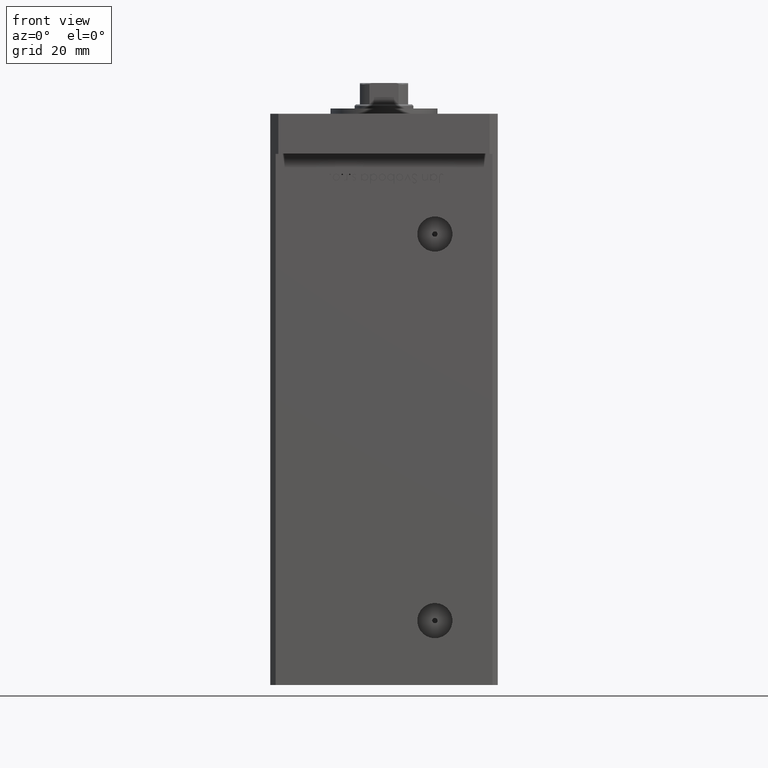
[diagram: clean part render]
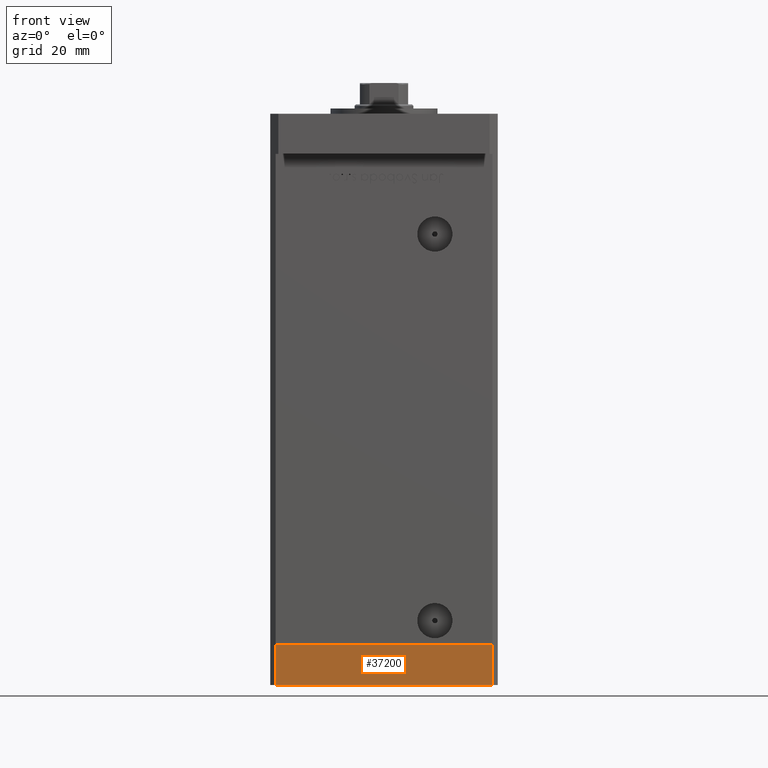
[diagram: same view with one face highlighted and labeled with its STEP entity id]
A machine part, front view. The second image highlights one B-rep face of the part: STEP entity #37200.
In plain terms, the highlighted planar face has unit normal (-0, -1, -0).
Its self-contained STEP definition (entity closure, byte-faithful):
#1802 = CARTESIAN_POINT ( 'NONE',  ( -40.49999999999999289, -37.50000000000002132, -15.00000000000000000 ) ) ;
#2709 = DIRECTION ( 'NONE',  ( 1.000000000000000000, 1.713307136767217096E-16, 0.000000000000000000 ) ) ;
#2994 = CARTESIAN_POINT ( 'NONE',  ( -40.49999999999999289, -37.50000000000002132, -15.00000000000000000 ) ) ;
#3635 = CARTESIAN_POINT ( 'NONE',  ( -40.49999999999999289, -37.50000000000002132, -15.00000000000000000 ) ) ;
#4061 = DIRECTION ( 'NONE',  ( 1.713307136767217096E-16, -1.000000000000000000, 0.000000000000000000 ) ) ;
#5278 = EDGE_CURVE ( 'NONE', #34121, #21531, #52787, .T. ) ;
#7826 = EDGE_CURVE ( 'NONE', #12740, #21531, #24397, .T. ) ;
#8259 = EDGE_LOOP ( 'NONE', ( #26826, #46255, #39840, #34659 ) ) ;
#11329 = VECTOR ( 'NONE', #43236, 1000.000000000000000 ) ;
#12032 = CARTESIAN_POINT ( 'NONE',  ( 40.50000000000000000, -37.50000000000000711, -15.00000000000000000 ) ) ;
#12740 = VERTEX_POINT ( 'NONE', #40571 ) ;
#19835 = FACE_OUTER_BOUND ( 'NONE', #8259, .T. ) ;
#21531 = VERTEX_POINT ( 'NONE', #52670 ) ;
#24397 = LINE ( 'NONE', #40925, #30867 ) ;
#24428 = DIRECTION ( 'NONE',  ( 1.000000000000000000, 1.713307136767217096E-16, 0.000000000000000000 ) ) ;
#26719 = CARTESIAN_POINT ( 'NONE',  ( -40.49999999999999289, -37.50000000000002132, -15.00000000000000000 ) ) ;
#26826 = ORIENTED_EDGE ( 'NONE', *, *, #7826, .F. ) ;
#30867 = VECTOR ( 'NONE', #2709, 1000.000000000000000 ) ;
#33161 = EDGE_CURVE ( 'NONE', #46642, #34121, #39775, .T. ) ;
#34121 = VERTEX_POINT ( 'NONE', #12032 ) ;
#34659 = ORIENTED_EDGE ( 'NONE', *, *, #5278, .T. ) ;
#34907 = DIRECTION ( 'NONE',  ( 1.000000000000000000, 1.713307136767217096E-16, 0.000000000000000000 ) ) ;
#37200 = ADVANCED_FACE ( 'NONE', ( #19835 ), #41222, .T. ) ;
#38845 = EDGE_CURVE ( 'NONE', #46642, #12740, #47018, .T. ) ;
#39775 = LINE ( 'NONE', #1802, #50108 ) ;
#39840 = ORIENTED_EDGE ( 'NONE', *, *, #33161, .T. ) ;
#40571 = CARTESIAN_POINT ( 'NONE',  ( -40.49999999999999289, -37.50000000000002132, 0.000000000000000000 ) ) ;
#40925 = CARTESIAN_POINT ( 'NONE',  ( -40.49999999999999289, -37.50000000000002132, 0.000000000000000000 ) ) ;
#41198 = VECTOR ( 'NONE', #48719, 1000.000000000000000 ) ;
#41222 = PLANE ( 'NONE',  #43337 ) ;
#43236 = DIRECTION ( 'NONE',  ( 0.000000000000000000, 0.000000000000000000, 1.000000000000000000 ) ) ;
#43337 = AXIS2_PLACEMENT_3D ( 'NONE', #2994, #4061, #24428 ) ;
#44630 = CARTESIAN_POINT ( 'NONE',  ( 40.50000000000000000, -37.50000000000000711, -15.00000000000000000 ) ) ;
#46255 = ORIENTED_EDGE ( 'NONE', *, *, #38845, .F. ) ;
#46642 = VERTEX_POINT ( 'NONE', #3635 ) ;
#47018 = LINE ( 'NONE', #26719, #11329 ) ;
#48719 = DIRECTION ( 'NONE',  ( 0.000000000000000000, 0.000000000000000000, 1.000000000000000000 ) ) ;
#50108 = VECTOR ( 'NONE', #34907, 1000.000000000000000 ) ;
#52670 = CARTESIAN_POINT ( 'NONE',  ( 40.50000000000000000, -37.50000000000000711, 0.000000000000000000 ) ) ;
#52787 = LINE ( 'NONE', #44630, #41198 ) ;